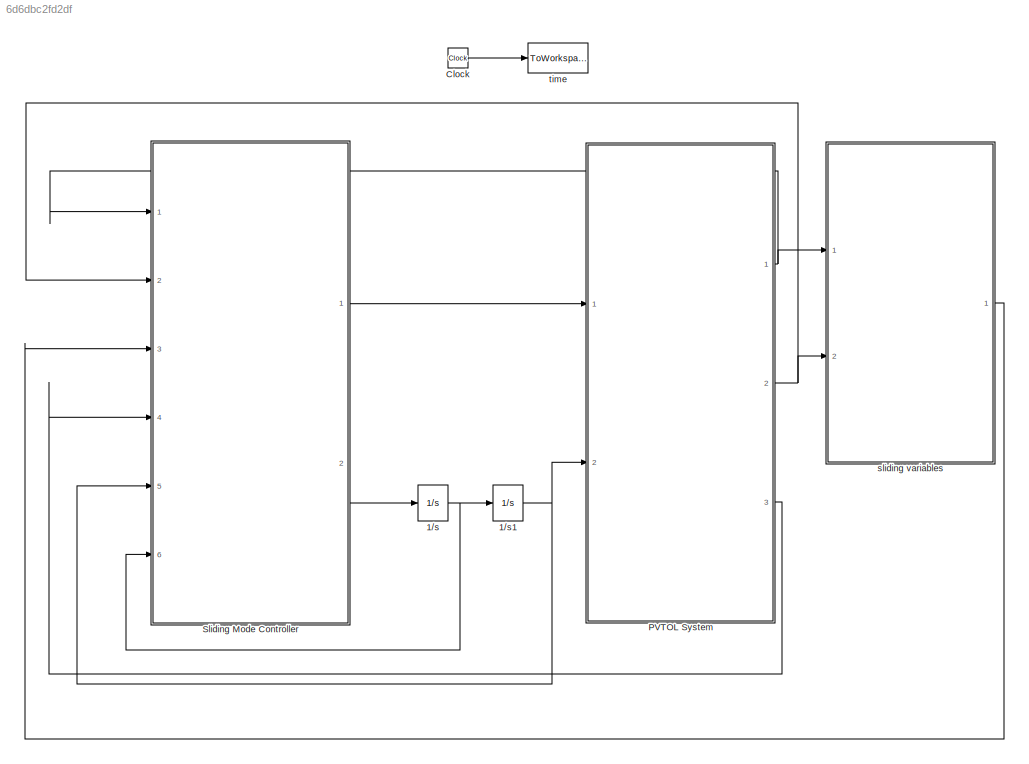
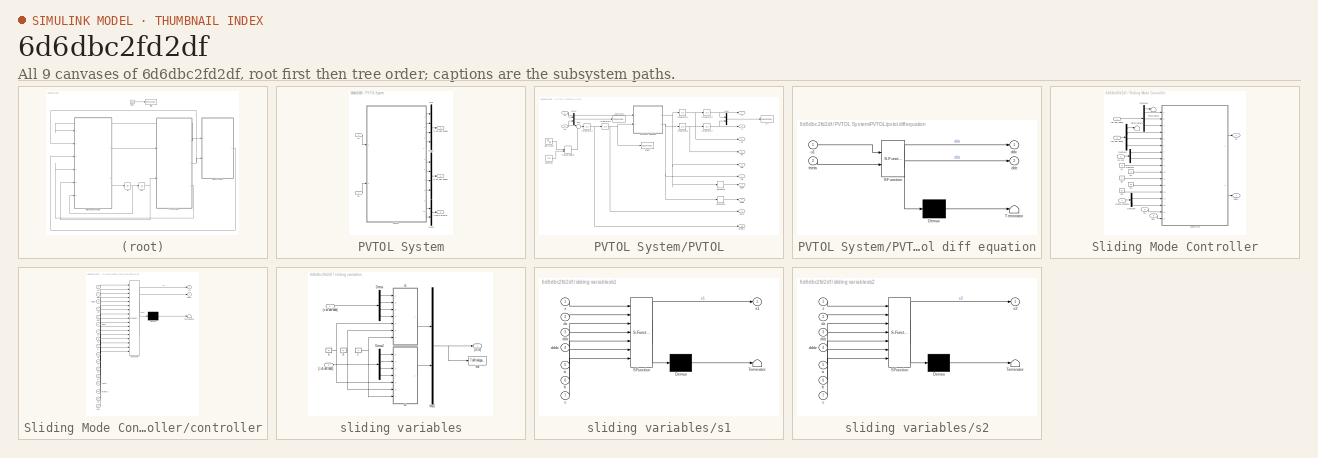
[diagram: thumbnail index - all 9 canvases of the model, root first then tree order]
MODEL slx_6d6dbc2fd2df
KIND model
CONFIG AbsTol = auto
CONFIG FixedStep = 0.001
CONFIG MaxStep = auto
CONFIG MinStep = auto
CONFIG RelTol = 1e-3
CONFIG SampleTimeConstraint = Unconstrained
CONFIG Solver = ode4
CONFIG SolverMode = Auto
CONFIG SolverName = ode4
CONFIG StartTime = 0.0
CONFIG StopTime = 5
BLOCK [Integrator] 1//s
  Ports = [1, 1]
BLOCK [Integrator] 1//s1
  InitialCondition = 0.1
  Ports = [1, 1]
BLOCK [Clock] Clock
BLOCK [SubSystem] PVTOL System
  Ports = [2, 3]
  RequestExecContextInheritance = off
  Variant = off
BLOCK [Mux] PVTOL System/Mux
  DisplayOption = bar
  Ports = [4, 1]
BLOCK [Mux] PVTOL System/Mux1
  DisplayOption = bar
  Ports = [4, 1]
BLOCK [Mux] PVTOL System/Mux3
  DisplayOption = bar
  Inputs = 2
  Ports = [2, 1]
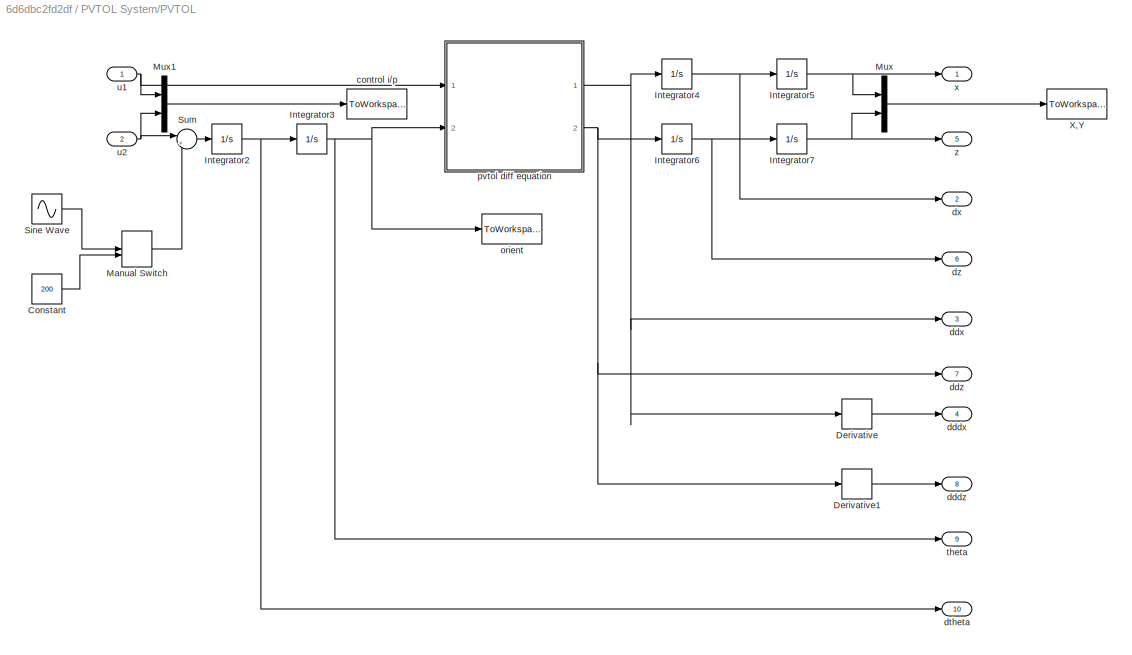
BLOCK [SubSystem] PVTOL System/PVTOL
  Ports = [2, 10]
  RequestExecContextInheritance = off
  Variant = off
BLOCK [Constant] PVTOL System/PVTOL/Constant
  Value = 200
BLOCK [Derivative] PVTOL System/PVTOL/Derivative
BLOCK [Derivative] PVTOL System/PVTOL/Derivative1
BLOCK [Integrator] PVTOL System/PVTOL/Integrator2
  Ports = [1, 1]
BLOCK [Integrator] PVTOL System/PVTOL/Integrator3
  Ports = [1, 1]
BLOCK [Integrator] PVTOL System/PVTOL/Integrator4
  Ports = [1, 1]
BLOCK [Integrator] PVTOL System/PVTOL/Integrator5
  InitialCondition = 2
  Ports = [1, 1]
BLOCK [Integrator] PVTOL System/PVTOL/Integrator6
  Ports = [1, 1]
BLOCK [Integrator] PVTOL System/PVTOL/Integrator7
  InitialCondition = 1
  Ports = [1, 1]
BLOCK [ManualSwitch] PVTOL System/PVTOL/Manual Switch
  CurrentSetting = 0
BLOCK [Mux] PVTOL System/PVTOL/Mux
  DisplayOption = bar
  Inputs = 2
  Ports = [2, 1]
BLOCK [Mux] PVTOL System/PVTOL/Mux1
  DisplayOption = bar
  Inputs = 2
  Ports = [2, 1]
BLOCK [Sin] PVTOL System/PVTOL/Sine Wave
  Amplitude = 200
  Ports = [0, 1]
  SampleTime = 0
BLOCK [Sum] PVTOL System/PVTOL/Sum
  IconShape = round
  InputSameDT = off
  Inputs = |++
  OutDataTypeStr = Inherit: Inherit via internal rule
  Ports = [2, 1]
  SaturateOnIntegerOverflow = off
BLOCK [ToWorkspace] PVTOL System/PVTOL/X,Y
  FixptAsFi = on
  MaxDataPoints = inf
  Ports = [1]
  SampleTime = -1
  Save2DSignal = 3-D array (concatenate along third dimension)
  VariableName = h
BLOCK [ToWorkspace] PVTOL System/PVTOL/control i//p
  FixptAsFi = on
  MaxDataPoints = inf
  Ports = [1]
  SampleTime = -1
  Save2DSignal = 3-D array (concatenate along third dimension)
  VariableName = u
BLOCK [Outport] PVTOL System/PVTOL/dddx
  IconDisplay = Port number
  Port = 4
BLOCK [Outport] PVTOL System/PVTOL/dddz
  IconDisplay = Port number
  Port = 8
BLOCK [Outport] PVTOL System/PVTOL/ddx
  IconDisplay = Port number
  Port = 3
BLOCK [Outport] PVTOL System/PVTOL/ddz
  IconDisplay = Port number
  Port = 7
BLOCK [Outport] PVTOL System/PVTOL/dtheta
  IconDisplay = Port number
  Port = 10
BLOCK [Outport] PVTOL System/PVTOL/dx
  IconDisplay = Port number
  Port = 2
BLOCK [Outport] PVTOL System/PVTOL/dz
  IconDisplay = Port number
  Port = 6
BLOCK [ToWorkspace] PVTOL System/PVTOL/orient
  FixptAsFi = on
  MaxDataPoints = inf
  Ports = [1]
  SampleTime = -1
  Save2DSignal = 3-D array (concatenate along third dimension)
  VariableName = theta
BLOCK [SubSystem] PVTOL System/PVTOL/pvtol diff equation
  ErrorFcn = Stateflow.Translate.translate
  PermitHierarchicalResolution = ExplicitOnly
  Ports = [2, 2]
  RequestExecContextInheritance = off
  SFBlockType = MATLAB Function
  TreatAsAtomicUnit = on
  Variant = off
BLOCK [Demux] PVTOL System/PVTOL/pvtol diff equation/ Demux 
  Outputs = 1
  Ports = [1, 1]
BLOCK [S-Function] PVTOL System/PVTOL/pvtol diff equation/ SFunction 
  EnableBusSupport = on
  FunctionName = sf_sfun
  PortCounts = [2 3]
  Ports = [2, 3]
  SFunctionDeploymentMode = off
  Tag = Stateflow S-Function model3 2
BLOCK [Terminator] PVTOL System/PVTOL/pvtol diff equation/ Terminator 
BLOCK [Outport] PVTOL System/PVTOL/pvtol diff equation/ddx
  IconDisplay = Port number
BLOCK [Outport] PVTOL System/PVTOL/pvtol diff equation/ddz
  IconDisplay = Port number
  Port = 2
BLOCK [Inport] PVTOL System/PVTOL/pvtol diff equation/theta
  IconDisplay = Port number
  Port = 2
BLOCK [Inport] PVTOL System/PVTOL/pvtol diff equation/u1
  IconDisplay = Port number
BLOCK [Outport] PVTOL System/PVTOL/theta
  IconDisplay = Port number
  Port = 9
BLOCK [Inport] PVTOL System/PVTOL/u1
  IconDisplay = Port number
BLOCK [Inport] PVTOL System/PVTOL/u2
  IconDisplay = Port number
  Port = 2
BLOCK [Outport] PVTOL System/PVTOL/x
  IconDisplay = Port number
BLOCK [Outport] PVTOL System/PVTOL/z
  IconDisplay = Port number
  Port = 5
BLOCK [Outport] PVTOL System/[theta dtheta]
  IconDisplay = Port number
  Port = 3
BLOCK [Outport] PVTOL System/[x dx ddx dddx]
  IconDisplay = Port number
BLOCK [Outport] PVTOL System/[z dz ddz dddz]
  IconDisplay = Port number
  Port = 2
BLOCK [Inport] PVTOL System/u1
  IconDisplay = Port number
  Port = 2
BLOCK [Inport] PVTOL System/u2
  IconDisplay = Port number
BLOCK [SubSystem] Sliding Mode Controller
  Ports = [6, 2]
  RequestExecContextInheritance = off
  Variant = off
BLOCK [Demux] Sliding Mode Controller/Demux1
  DisplayOption = bar
  Outputs = 2
  Ports = [1, 2]
BLOCK [Demux] Sliding Mode Controller/Demux3
  DisplayOption = bar
  Ports = [1, 4]
BLOCK [Demux] Sliding Mode Controller/Demux4
  DisplayOption = bar
  Ports = [1, 4]
BLOCK [Demux] Sliding Mode Controller/Demux5
  DisplayOption = bar
  Outputs = 2
  Ports = [1, 2]
BLOCK [Terminator] Sliding Mode Controller/Terminator
BLOCK [Terminator] Sliding Mode Controller/Terminator1
BLOCK [Inport] Sliding Mode Controller/[dx ddx dddx]
  IconDisplay = Port number
BLOCK [Inport] Sliding Mode Controller/[dz ddz dddz]
  IconDisplay = Port number
  Port = 2
BLOCK [Inport] Sliding Mode Controller/[s1 s2]
  IconDisplay = Port number
  Port = 3
BLOCK [Inport] Sliding Mode Controller/[theta dtheta]
  IconDisplay = Port number
  Port = 4
BLOCK [Constant] Sliding Mode Controller/a1
  Value = a
BLOCK [Constant] Sliding Mode Controller/a2
  Value = b
BLOCK [Constant] Sliding Mode Controller/a3
  Value = c
BLOCK [Constant] Sliding Mode Controller/a4
  Value = kx
BLOCK [Constant] Sliding Mode Controller/a5
  Value = kz
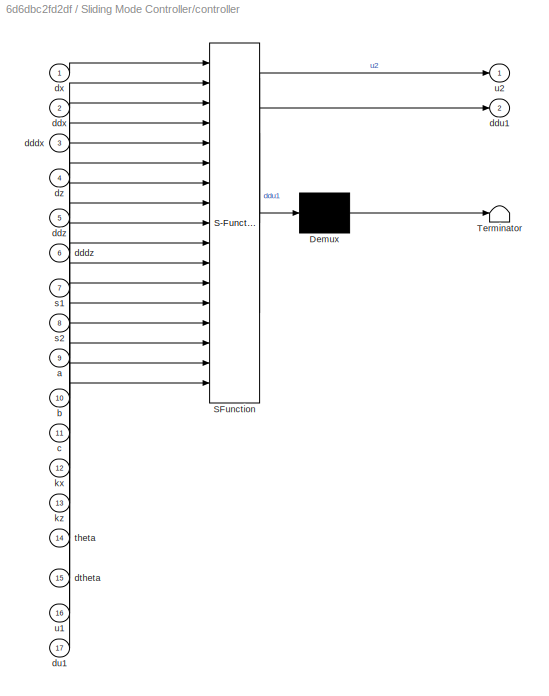
BLOCK [SubSystem] Sliding Mode Controller/controller
  ErrorFcn = Stateflow.Translate.translate
  PermitHierarchicalResolution = ExplicitOnly
  Ports = [17, 2]
  RequestExecContextInheritance = off
  SFBlockType = MATLAB Function
  TreatAsAtomicUnit = on
  Variant = off
BLOCK [Demux] Sliding Mode Controller/controller/ Demux 
  Outputs = 1
  Ports = [1, 1]
BLOCK [S-Function] Sliding Mode Controller/controller/ SFunction 
  EnableBusSupport = on
  FunctionName = sf_sfun
  PortCounts = [17 3]
  Ports = [17, 3]
  SFunctionDeploymentMode = off
  Tag = Stateflow S-Function model3 4
BLOCK [Terminator] Sliding Mode Controller/controller/ Terminator 
BLOCK [Inport] Sliding Mode Controller/controller/a
  IconDisplay = Port number
  Port = 9
BLOCK [Inport] Sliding Mode Controller/controller/b
  IconDisplay = Port number
  Port = 10
BLOCK [Inport] Sliding Mode Controller/controller/c
  IconDisplay = Port number
  Port = 11
BLOCK [Inport] Sliding Mode Controller/controller/dddx
  IconDisplay = Port number
  Port = 3
BLOCK [Inport] Sliding Mode Controller/controller/dddz
  IconDisplay = Port number
  Port = 6
BLOCK [Outport] Sliding Mode Controller/controller/ddu1
  IconDisplay = Port number
  Port = 2
BLOCK [Inport] Sliding Mode Controller/controller/ddx
  IconDisplay = Port number
  Port = 2
BLOCK [Inport] Sliding Mode Controller/controller/ddz
  IconDisplay = Port number
  Port = 5
BLOCK [Inport] Sliding Mode Controller/controller/dtheta
  IconDisplay = Port number
  Port = 15
BLOCK [Inport] Sliding Mode Controller/controller/du1
  IconDisplay = Port number
  Port = 17
BLOCK [Inport] Sliding Mode Controller/controller/dx
  IconDisplay = Port number
BLOCK [Inport] Sliding Mode Controller/controller/dz
  IconDisplay = Port number
  Port = 4
BLOCK [Inport] Sliding Mode Controller/controller/kx
  IconDisplay = Port number
  Port = 12
BLOCK [Inport] Sliding Mode Controller/controller/kz
  IconDisplay = Port number
  Port = 13
BLOCK [Inport] Sliding Mode Controller/controller/s1
  IconDisplay = Port number
  Port = 7
BLOCK [Inport] Sliding Mode Controller/controller/s2
  IconDisplay = Port number
  Port = 8
BLOCK [Inport] Sliding Mode Controller/controller/theta
  IconDisplay = Port number
  Port = 14
BLOCK [Inport] Sliding Mode Controller/controller/u1
  IconDisplay = Port number
  Port = 16
BLOCK [Outport] Sliding Mode Controller/controller/u2
  IconDisplay = Port number
BLOCK [Outport] Sliding Mode Controller/ddu1
  IconDisplay = Port number
  Port = 2
BLOCK [Inport] Sliding Mode Controller/du1
  IconDisplay = Port number
  Port = 6
BLOCK [Inport] Sliding Mode Controller/u1
  IconDisplay = Port number
  Port = 5
BLOCK [Outport] Sliding Mode Controller/u2
  IconDisplay = Port number
BLOCK [SubSystem] sliding variables
  Ports = [2, 1]
  RequestExecContextInheritance = off
  Variant = off
BLOCK [Demux] sliding variables/Demux
  DisplayOption = bar
  Ports = [1, 4]
BLOCK [Demux] sliding variables/Demux2
  DisplayOption = bar
  Ports = [1, 4]
BLOCK [Mux] sliding variables/Mux2
  DisplayOption = bar
  Inputs = 2
  Ports = [2, 1]
BLOCK [Outport] sliding variables/[s1 s2]
  IconDisplay = Port number
BLOCK [Inport] sliding variables/[x dx ddx dddx]
  IconDisplay = Port number
BLOCK [Inport] sliding variables/[z dz ddz dddz]
  IconDisplay = Port number
  Port = 2
BLOCK [Constant] sliding variables/a
  Value = a
BLOCK [Constant] sliding variables/b
  Value = b
BLOCK [Constant] sliding variables/c
  Value = c
BLOCK [SubSystem] sliding variables/s1
  ErrorFcn = Stateflow.Translate.translate
  PermitHierarchicalResolution = ExplicitOnly
  Ports = [7, 1]
  RequestExecContextInheritance = off
  SFBlockType = MATLAB Function
  TreatAsAtomicUnit = on
  Variant = off
BLOCK [Demux] sliding variables/s1/ Demux 
  Outputs = 1
  Ports = [1, 1]
BLOCK [S-Function] sliding variables/s1/ SFunction 
  EnableBusSupport = on
  FunctionName = sf_sfun
  PortCounts = [7 2]
  Ports = [7, 2]
  SFunctionDeploymentMode = off
  Tag = Stateflow S-Function model3 1
BLOCK [Terminator] sliding variables/s1/ Terminator 
BLOCK [Inport] sliding variables/s1/a
  IconDisplay = Port number
  Port = 5
BLOCK [Inport] sliding variables/s1/b
  IconDisplay = Port number
  Port = 6
BLOCK [Inport] sliding variables/s1/c
  IconDisplay = Port number
  Port = 7
BLOCK [Inport] sliding variables/s1/dddx
  IconDisplay = Port number
  Port = 4
BLOCK [Inport] sliding variables/s1/ddx
  IconDisplay = Port number
  Port = 3
BLOCK [Inport] sliding variables/s1/dx
  IconDisplay = Port number
  Port = 2
BLOCK [Outport] sliding variables/s1/s1
  IconDisplay = Port number
BLOCK [Inport] sliding variables/s1/x
  IconDisplay = Port number
BLOCK [SubSystem] sliding variables/s2
  ErrorFcn = Stateflow.Translate.translate
  PermitHierarchicalResolution = ExplicitOnly
  Ports = [7, 1]
  RequestExecContextInheritance = off
  SFBlockType = MATLAB Function
  TreatAsAtomicUnit = on
  Variant = off
BLOCK [Demux] sliding variables/s2/ Demux 
  Outputs = 1
  Ports = [1, 1]
BLOCK [S-Function] sliding variables/s2/ SFunction 
  EnableBusSupport = on
  FunctionName = sf_sfun
  PortCounts = [7 2]
  Ports = [7, 2]
  SFunctionDeploymentMode = off
  Tag = Stateflow S-Function model3 3
BLOCK [Terminator] sliding variables/s2/ Terminator 
BLOCK [Inport] sliding variables/s2/a
  IconDisplay = Port number
  Port = 5
BLOCK [Inport] sliding variables/s2/b
  IconDisplay = Port number
  Port = 6
BLOCK [Inport] sliding variables/s2/c
  IconDisplay = Port number
  Port = 7
BLOCK [Inport] sliding variables/s2/dddz
  IconDisplay = Port number
  Port = 4
BLOCK [Inport] sliding variables/s2/ddz
  IconDisplay = Port number
  Port = 3
BLOCK [Inport] sliding variables/s2/dz
  IconDisplay = Port number
  Port = 2
BLOCK [Outport] sliding variables/s2/s2
  IconDisplay = Port number
BLOCK [Inport] sliding variables/s2/z
  IconDisplay = Port number
BLOCK [ToWorkspace] sliding variables/svar
  FixptAsFi = on
  MaxDataPoints = inf
  Ports = [1]
  SampleTime = -1
  Save2DSignal = 3-D array (concatenate along third dimension)
  VariableName = svar
BLOCK [ToWorkspace] time
  FixptAsFi = on
  MaxDataPoints = inf
  Ports = [1]
  SampleTime = -1
  Save2DSignal = 3-D array (concatenate along third dimension)
  VariableName = t
NET 1//s1:1 -> PVTOL System:2, Sliding Mode Controller:5
NET 1//s:1 -> 1//s1:1, Sliding Mode Controller:6
LINE Clock:1 -> time:1
LINE PVTOL System/Mux1:1 -> PVTOL System/[z dz ddz dddz]:1
LINE PVTOL System/Mux3:1 -> PVTOL System/[theta dtheta]:1
LINE PVTOL System/Mux:1 -> PVTOL System/[x dx ddx dddx]:1
LINE PVTOL System/PVTOL/Constant:1 -> PVTOL System/PVTOL/Manual Switch:2
LINE PVTOL System/PVTOL/Derivative1:1 -> PVTOL System/PVTOL/dddz:1
LINE PVTOL System/PVTOL/Derivative:1 -> PVTOL System/PVTOL/dddx:1
NET PVTOL System/PVTOL/Integrator2:1 -> PVTOL System/PVTOL/Integrator3:1, PVTOL System/PVTOL/dtheta:1
NET PVTOL System/PVTOL/Integrator3:1 -> PVTOL System/PVTOL/orient:1, PVTOL System/PVTOL/pvtol diff equation:2, PVTOL System/PVTOL/theta:1
NET PVTOL System/PVTOL/Integrator4:1 -> PVTOL System/PVTOL/Integrator5:1, PVTOL System/PVTOL/dx:1
NET PVTOL System/PVTOL/Integrator5:1 -> PVTOL System/PVTOL/Mux:1, PVTOL System/PVTOL/x:1
NET PVTOL System/PVTOL/Integrator6:1 -> PVTOL System/PVTOL/Integrator7:1, PVTOL System/PVTOL/dz:1
NET PVTOL System/PVTOL/Integrator7:1 -> PVTOL System/PVTOL/Mux:2, PVTOL System/PVTOL/z:1
LINE PVTOL System/PVTOL/Manual Switch:1 -> PVTOL System/PVTOL/Sum:2
LINE PVTOL System/PVTOL/Mux1:1 -> PVTOL System/PVTOL/control i//p:1
LINE PVTOL System/PVTOL/Mux:1 -> PVTOL System/PVTOL/X,Y:1
LINE PVTOL System/PVTOL/Sine Wave:1 -> PVTOL System/PVTOL/Manual Switch:1
LINE PVTOL System/PVTOL/Sum:1 -> PVTOL System/PVTOL/Integrator2:1
NET PVTOL System/PVTOL/pvtol diff equation:1 -> PVTOL System/PVTOL/Derivative:1, PVTOL System/PVTOL/Integrator4:1, PVTOL System/PVTOL/ddx:1
NET PVTOL System/PVTOL/pvtol diff equation:2 -> PVTOL System/PVTOL/Derivative1:1, PVTOL System/PVTOL/Integrator6:1, PVTOL System/PVTOL/ddz:1
NET PVTOL System/PVTOL/u1:1 -> PVTOL System/PVTOL/Mux1:1, PVTOL System/PVTOL/pvtol diff equation:1
NET PVTOL System/PVTOL/u2:1 -> PVTOL System/PVTOL/Mux1:2, PVTOL System/PVTOL/Sum:1
LINE PVTOL System/PVTOL:1 -> PVTOL System/Mux:1
LINE PVTOL System/PVTOL:10 -> PVTOL System/Mux3:2
LINE PVTOL System/PVTOL:2 -> PVTOL System/Mux:2
LINE PVTOL System/PVTOL:3 -> PVTOL System/Mux:3
LINE PVTOL System/PVTOL:4 -> PVTOL System/Mux:4
LINE PVTOL System/PVTOL:5 -> PVTOL System/Mux1:1
LINE PVTOL System/PVTOL:6 -> PVTOL System/Mux1:2
LINE PVTOL System/PVTOL:7 -> PVTOL System/Mux1:3
LINE PVTOL System/PVTOL:8 -> PVTOL System/Mux1:4
LINE PVTOL System/PVTOL:9 -> PVTOL System/Mux3:1
LINE PVTOL System/u1:1 -> PVTOL System/PVTOL:1
LINE PVTOL System/u2:1 -> PVTOL System/PVTOL:2
NET PVTOL System:1 -> Sliding Mode Controller:1, sliding variables:1
NET PVTOL System:2 -> Sliding Mode Controller:2, sliding variables:2
LINE PVTOL System:3 -> Sliding Mode Controller:4
LINE Sliding Mode Controller/Demux1:1 -> Sliding Mode Controller/controller:7
LINE Sliding Mode Controller/Demux1:2 -> Sliding Mode Controller/controller:8
LINE Sliding Mode Controller/Demux3:1 -> Sliding Mode Controller/Terminator:1
LINE Sliding Mode Controller/Demux3:2 -> Sliding Mode Controller/controller:1
LINE Sliding Mode Controller/Demux3:3 -> Sliding Mode Controller/controller:2
LINE Sliding Mode Controller/Demux3:4 -> Sliding Mode Controller/controller:3
LINE Sliding Mode Controller/Demux4:1 -> Sliding Mode Controller/Terminator1:1
LINE Sliding Mode Controller/Demux4:2 -> Sliding Mode Controller/controller:4
LINE Sliding Mode Controller/Demux4:3 -> Sliding Mode Controller/controller:5
LINE Sliding Mode Controller/Demux4:4 -> Sliding Mode Controller/controller:6
LINE Sliding Mode Controller/Demux5:1 -> Sliding Mode Controller/controller:14
LINE Sliding Mode Controller/Demux5:2 -> Sliding Mode Controller/controller:15
LINE Sliding Mode Controller/[dx ddx dddx]:1 -> Sliding Mode Controller/Demux3:1
LINE Sliding Mode Controller/[dz ddz dddz]:1 -> Sliding Mode Controller/Demux4:1
LINE Sliding Mode Controller/[s1 s2]:1 -> Sliding Mode Controller/Demux1:1
LINE Sliding Mode Controller/[theta dtheta]:1 -> Sliding Mode Controller/Demux5:1
LINE Sliding Mode Controller/a1:1 -> Sliding Mode Controller/controller:9
LINE Sliding Mode Controller/a2:1 -> Sliding Mode Controller/controller:10
LINE Sliding Mode Controller/a3:1 -> Sliding Mode Controller/controller:11
LINE Sliding Mode Controller/a4:1 -> Sliding Mode Controller/controller:12
LINE Sliding Mode Controller/a5:1 -> Sliding Mode Controller/controller:13
LINE Sliding Mode Controller/controller:1 -> Sliding Mode Controller/u2:1
LINE Sliding Mode Controller/controller:2 -> Sliding Mode Controller/ddu1:1
LINE Sliding Mode Controller/du1:1 -> Sliding Mode Controller/controller:17
LINE Sliding Mode Controller/u1:1 -> Sliding Mode Controller/controller:16
LINE Sliding Mode Controller:1 -> PVTOL System:1
LINE Sliding Mode Controller:2 -> 1//s:1
LINE sliding variables/Demux2:1 -> sliding variables/s2:1
LINE sliding variables/Demux2:2 -> sliding variables/s2:2
LINE sliding variables/Demux2:3 -> sliding variables/s2:3
LINE sliding variables/Demux2:4 -> sliding variables/s2:4
LINE sliding variables/Demux:1 -> sliding variables/s1:1
LINE sliding variables/Demux:2 -> sliding variables/s1:2
LINE sliding variables/Demux:3 -> sliding variables/s1:3
LINE sliding variables/Demux:4 -> sliding variables/s1:4
NET sliding variables/Mux2:1 -> sliding variables/[s1 s2]:1, sliding variables/svar:1
LINE sliding variables/[x dx ddx dddx]:1 -> sliding variables/Demux:1
LINE sliding variables/[z dz ddz dddz]:1 -> sliding variables/Demux2:1
NET sliding variables/a:1 -> sliding variables/s1:5, sliding variables/s2:5
NET sliding variables/b:1 -> sliding variables/s1:6, sliding variables/s2:6
NET sliding variables/c:1 -> sliding variables/s1:7, sliding variables/s2:7
LINE sliding variables/s1:1 -> sliding variables/Mux2:1
LINE sliding variables/s2:1 -> sliding variables/Mux2:2
LINE sliding variables:1 -> Sliding Mode Controller:3
note: NET lines group one-source signal fan-out (src -> all destinations, sorted); 1:1 wires keep LINE
CHART sliding variables/s1 states=1 transitions=1
  STATE_LABEL 'eML_blk_kernel()'
  STATE_LABEL 'SCRIPT:\nfunction s1= slidingVar1(x,dx,ddx,dddx,a,b,c)\n%#codegen\ns1=dddx+a*ddx+b*dx+c*x;\nend'
CHART PVTOL System/PVTOL/pvtol diff equation states=1 transitions=1
  STATE_LABEL 'eML_blk_kernel()'
  STATE_LABEL 'SCRIPT:\nfunction [ddx,ddz] = system(u1,theta)\n%#codegen\nddx=-u1*sin(theta);\nddz=u1*cos(theta)-1;\nend'
CHART sliding variables/s2 states=1 transitions=1
  STATE_LABEL 'eML_blk_kernel()'
  STATE_LABEL 'SCRIPT:\nfunction s2= slidingVar2(z,dz,ddz,dddz,a,b,c)\n%#codegen\ns2=dddz+a*ddz+b*dz+c*z;\nend'
CHART Sliding Mode Controller/controller states=1 transitions=1
  STATE_LABEL 'eML_blk_kernel()'
  STATE_LABEL 'SCRIPT:\nfunction [u2,ddu1]= Controller(dx,ddx,dddx,dz,ddz,dddz,s1,s2,a,b,c,kx,kz,theta,dtheta, u1,du1)\n%#codegen\nalpha=a*[dddx;dddz]+b*[ddx;ddz]+c*[dx;dz]+[u1*(dtheta^2)*sin(theta)-2*du1*dtheta*cos(theta);-u1*(dtheta^2)*cos(theta)-2*du1*dtheta*sin(theta)];\nbeta=[-sin(theta) -u1*cos(theta);cos(theta) -u1*sin(theta)];\nu=inv(beta)*([-kx*sign(s1);-kz*sign(s2)]-alpha);\nddu1=u(1);\nu2=u(2);\nend'
